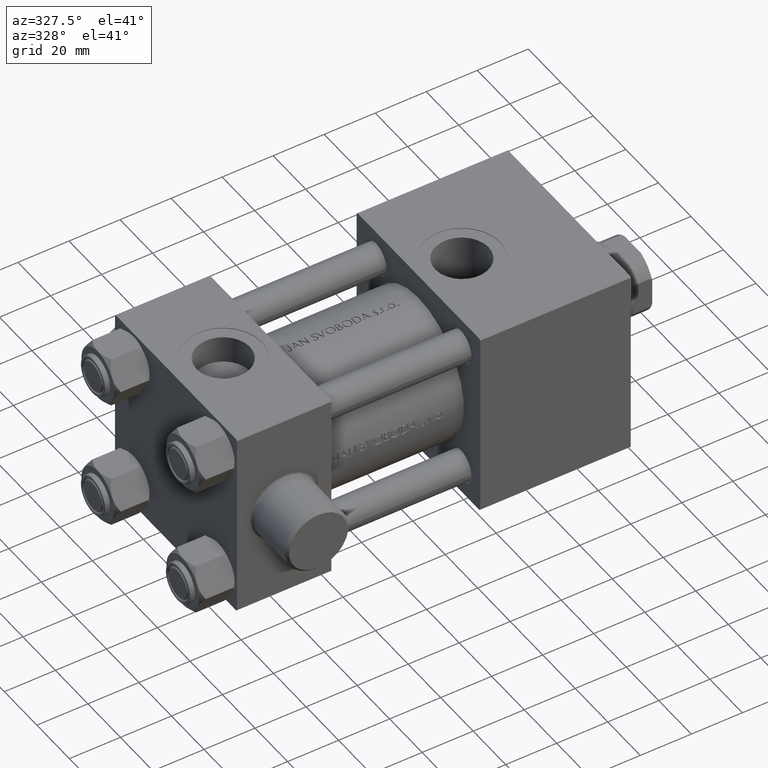
[diagram: clean part render]
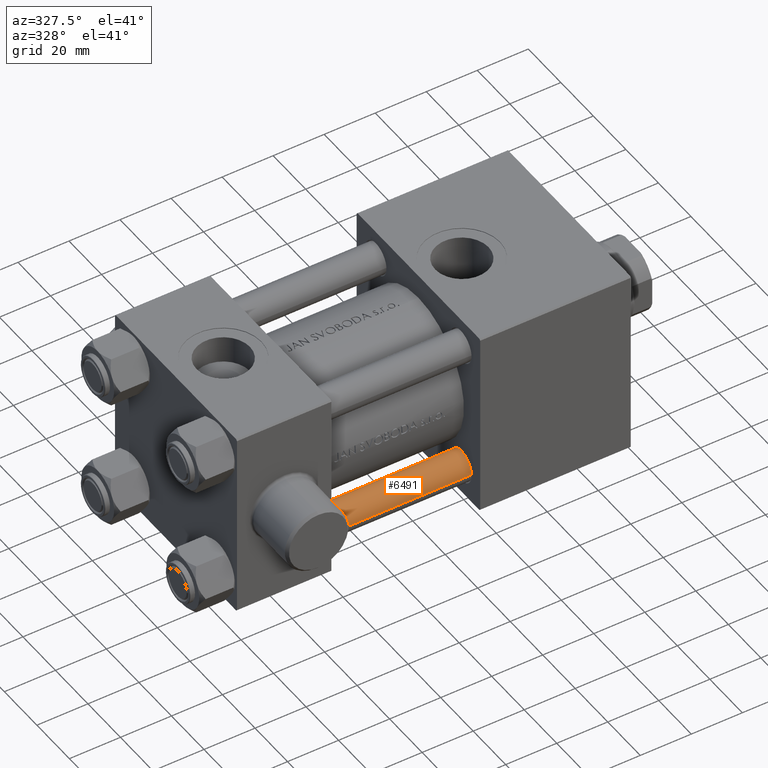
[diagram: same view with one face highlighted and labeled with its STEP entity id]
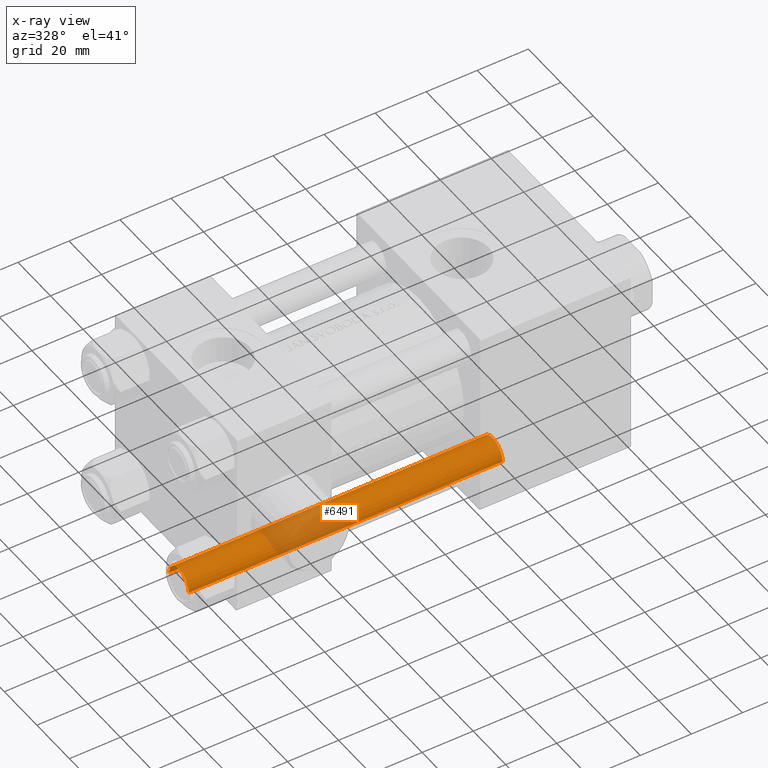
[diagram: x-ray of the same camera — body ghosted, the highlighted face saturated]
A machine part, auxiliary view. The second image highlights one B-rep face of the part: STEP entity #6491.
The next image is the same camera in x-ray: the body ghosted, the highlighted face saturated — about 23% of this face is hidden behind the body in this view.
In plain terms, the highlighted cylindrical surface (edge-blend (fillet) strip) has radius 6 mm, axis along (-1, 0, 0).
Its self-contained STEP definition (entity closure, byte-faithful):
#1110 = CYLINDRICAL_SURFACE ( 'NONE', #13111, 6.000000000000000888 ) ;
#2575 = AXIS2_PLACEMENT_3D ( 'NONE', #33278, #40655, #29838 ) ;
#2884 = DIRECTION ( 'NONE',  ( -0.000000000000000000, -0.000000000000000000, -1.000000000000000000 ) ) ;
#3722 = EDGE_CURVE ( 'NONE', #44848, #35817, #36424, .T. ) ;
#5517 = CARTESIAN_POINT ( 'NONE',  ( 0.000000000000000000, 0.000000000000000000, 124.0000000000000000 ) ) ;
#5685 = CIRCLE ( 'NONE', #2575, 6.000000000000000888 ) ;
#6034 = DIRECTION ( 'NONE',  ( -0.000000000000000000, -0.000000000000000000, -1.000000000000000000 ) ) ;
#6191 = ORIENTED_EDGE ( 'NONE', *, *, #34281, .T. ) ;
#6491 = ADVANCED_FACE ( 'NONE', ( #20931 ), #1110, .T. ) ;
#6780 = VERTEX_POINT ( 'NONE', #41043 ) ;
#13111 = AXIS2_PLACEMENT_3D ( 'NONE', #5517, #31254, #46233 ) ;
#14651 = CARTESIAN_POINT ( 'NONE',  ( -6.000000000000000888, 0.000000000000000000, 123.5000000000000426 ) ) ;
#16097 = ORIENTED_EDGE ( 'NONE', *, *, #36154, .T. ) ;
#16658 = ORIENTED_EDGE ( 'NONE', *, *, #3722, .F. ) ;
#17095 = VECTOR ( 'NONE', #6034, 1000.000000000000000 ) ;
#18778 = CARTESIAN_POINT ( 'NONE',  ( 6.000000000000000888, 7.347880794884120722E-16, 0.4999999999999865663 ) ) ;
#20931 = FACE_OUTER_BOUND ( 'NONE', #25769, .T. ) ;
#23391 = EDGE_CURVE ( 'NONE', #44848, #6780, #5685, .T. ) ;
#24253 = VERTEX_POINT ( 'NONE', #18778 ) ;
#24495 = CARTESIAN_POINT ( 'NONE',  ( -6.000000000000000888, 0.000000000000000000, 0.4999999999999865663 ) ) ;
#25769 = EDGE_LOOP ( 'NONE', ( #36161, #16097, #6191, #16658 ) ) ;
#26218 = CARTESIAN_POINT ( 'NONE',  ( 0.000000000000000000, 0.000000000000000000, 0.4999999999999865663 ) ) ;
#29573 = CARTESIAN_POINT ( 'NONE',  ( 6.000000000000000888, 7.347880794884120722E-16, 124.0000000000000000 ) ) ;
#29838 = DIRECTION ( 'NONE',  ( 1.000000000000000000, 0.000000000000000000, 0.000000000000000000 ) ) ;
#30635 = DIRECTION ( 'NONE',  ( -0.000000000000000000, -0.000000000000000000, 1.000000000000000000 ) ) ;
#31254 = DIRECTION ( 'NONE',  ( -0.000000000000000000, -0.000000000000000000, -1.000000000000000000 ) ) ;
#32549 = CIRCLE ( 'NONE', #34887, 6.000000000000000888 ) ;
#33278 = CARTESIAN_POINT ( 'NONE',  ( 0.000000000000000000, 0.000000000000000000, 123.5000000000000426 ) ) ;
#34281 = EDGE_CURVE ( 'NONE', #24253, #35817, #32549, .T. ) ;
#34887 = AXIS2_PLACEMENT_3D ( 'NONE', #26218, #30635, #41208 ) ;
#35817 = VERTEX_POINT ( 'NONE', #24495 ) ;
#36154 = EDGE_CURVE ( 'NONE', #6780, #24253, #36456, .T. ) ;
#36161 = ORIENTED_EDGE ( 'NONE', *, *, #23391, .T. ) ;
#36184 = CARTESIAN_POINT ( 'NONE',  ( -6.000000000000000888, 0.000000000000000000, 124.0000000000000000 ) ) ;
#36424 = LINE ( 'NONE', #36184, #17095 ) ;
#36456 = LINE ( 'NONE', #29573, #42787 ) ;
#40655 = DIRECTION ( 'NONE',  ( 0.000000000000000000, 0.000000000000000000, -1.000000000000000000 ) ) ;
#41043 = CARTESIAN_POINT ( 'NONE',  ( 6.000000000000000888, 7.347880794884120722E-16, 123.5000000000000426 ) ) ;
#41208 = DIRECTION ( 'NONE',  ( 1.000000000000000000, 0.000000000000000000, 0.000000000000000000 ) ) ;
#42787 = VECTOR ( 'NONE', #2884, 1000.000000000000000 ) ;
#44848 = VERTEX_POINT ( 'NONE', #14651 ) ;
#46233 = DIRECTION ( 'NONE',  ( -1.000000000000000000, 0.000000000000000000, 0.000000000000000000 ) ) ;